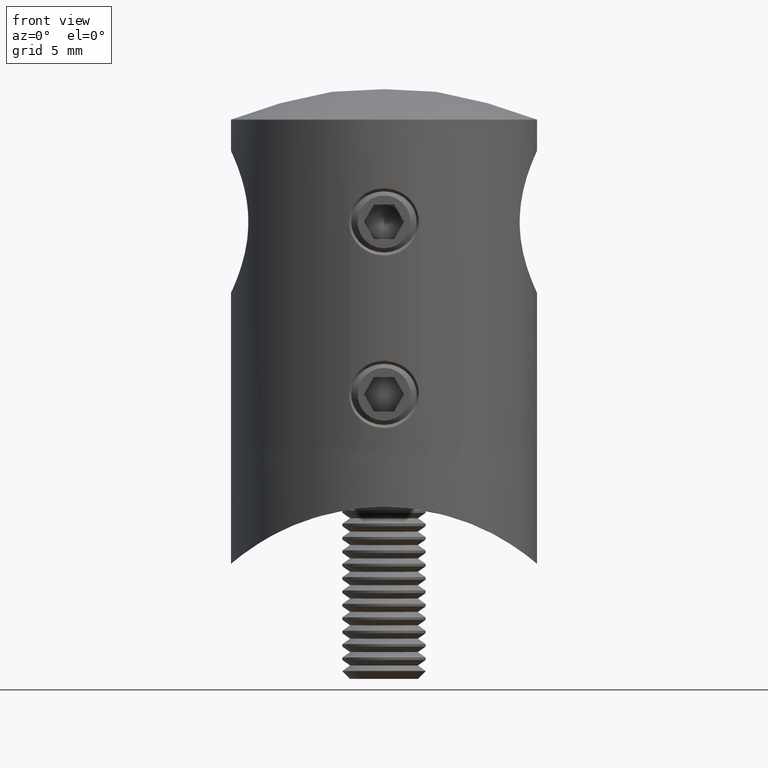
[diagram: clean part render]
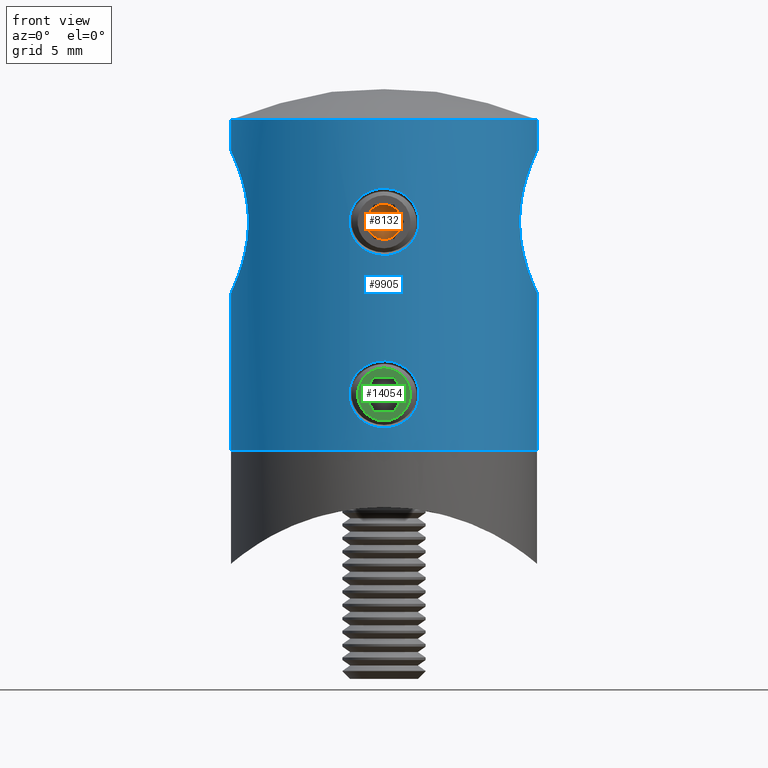
[diagram: same view with three faces highlighted in distinct colors, each labeled with its STEP entity id]
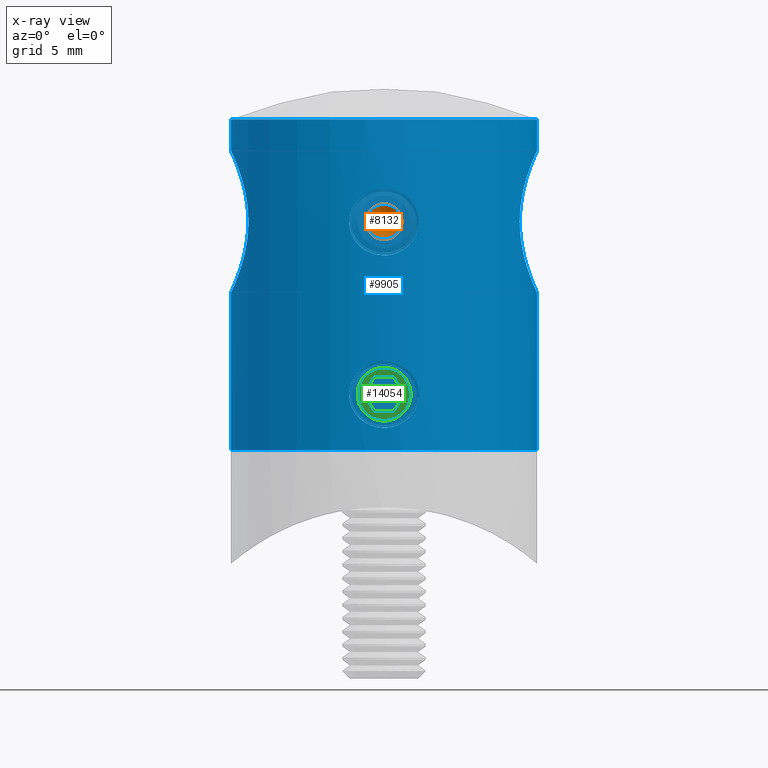
[diagram: x-ray of the same camera — body ghosted, the three highlighted faces saturated]
A machine part, front view with three faces highlighted in distinct colors.
The next image is the same camera in x-ray (body ghosted, the three faces saturated) — at least one of them is partly hidden behind the body in this view.
Their STEP definitions:

[orange] entity #8132 — the highlighted conical surface has half-angle 59 deg.
#440 = CARTESIAN_POINT ( 'NONE',  ( 2.000000000000001300, -1.082531754730553300, -0.6249999999999958900 ) ) ;
#710 = AXIS2_PLACEMENT_3D ( 'NONE', #6711, #8491, #16962 ) ;
#740 = DIRECTION ( 'NONE',  ( -1.000000000000000000, -0.0000000000000000000, 0.0000000000000000000 ) ) ;
#923 = ORIENTED_EDGE ( 'NONE', *, *, #20589, .F. ) ;
#951 = CIRCLE ( 'NONE', #14098, 1.250000000000002900 ) ;
#1242 = DIRECTION ( 'NONE',  ( -1.000000000000000000, -0.0000000000000000000, 0.0000000000000000000 ) ) ;
#1431 = ORIENTED_EDGE ( 'NONE', *, *, #21090, .F. ) ;
#1439 = VERTEX_POINT ( 'NONE', #8262 ) ;
#2050 = EDGE_CURVE ( 'NONE', #1439, #4864, #11025, .T. ) ;
#2206 = ORIENTED_EDGE ( 'NONE', *, *, #15689, .F. ) ;
#2312 = DIRECTION ( 'NONE',  ( 0.0000000000000000000, 0.0000000000000000000, 1.000000000000000000 ) ) ;
#2940 = CARTESIAN_POINT ( 'NONE',  ( 2.000000000000000000, 0.0000000000000000000, 6.209410300080172700E-015 ) ) ;
#3096 = DIRECTION ( 'NONE',  ( 0.0000000000000000000, 0.0000000000000000000, 1.000000000000000000 ) ) ;
#3623 = CARTESIAN_POINT ( 'NONE',  ( 2.000000000000001800, 3.755786496842908900E-016, -1.249999999999999300 ) ) ;
#4219 = AXIS2_PLACEMENT_3D ( 'NONE', #13508, #5066, #7007 ) ;
#4399 = CARTESIAN_POINT ( 'NONE',  ( 2.000000000000000000, 0.0000000000000000000, 6.209410300080172700E-015 ) ) ;
#4848 = DIRECTION ( 'NONE',  ( -1.000000000000000000, -0.0000000000000000000, 0.0000000000000000000 ) ) ;
#4864 = VERTEX_POINT ( 'NONE', #13747 ) ;
#5066 = DIRECTION ( 'NONE',  ( 1.000000000000000000, -0.0000000000000000000, 2.180260461768213300E-016 ) ) ;
#5074 = CIRCLE ( 'NONE', #710, 1.250000000000005300 ) ;
#5744 = VERTEX_POINT ( 'NONE', #440 ) ;
#6711 = CARTESIAN_POINT ( 'NONE',  ( 2.000000000000001300, 0.0000000000000000000, 5.755839955992561400E-015 ) ) ;
#6733 = CARTESIAN_POINT ( 'NONE',  ( 2.000000000000001300, 1.082531754730553100, -0.6249999999999965600 ) ) ;
#7007 = DIRECTION ( 'NONE',  ( 3.469446951953599400E-016, 0.0000000000000000000, -1.000000000000000000 ) ) ;
#7307 = AXIS2_PLACEMENT_3D ( 'NONE', #7769, #14561, #16221 ) ;
#7769 = CARTESIAN_POINT ( 'NONE',  ( 2.000000000000000000, 0.0000000000000000000, 6.209410300080172700E-015 ) ) ;
#7937 = AXIS2_PLACEMENT_3D ( 'NONE', #2940, #1242, #3096 ) ;
#8132 = ADVANCED_FACE ( 'NONE', ( #9235 ), #15663, .F. ) ;
#8262 = CARTESIAN_POINT ( 'NONE',  ( 2.000000000000001300, -1.082531754730552600, 0.6250000000000086600 ) ) ;
#8453 = VERTEX_POINT ( 'NONE', #3623 ) ;
#8491 = DIRECTION ( 'NONE',  ( 1.000000000000000000, -0.0000000000000000000, 2.180260461768213300E-016 ) ) ;
#8494 = CARTESIAN_POINT ( 'NONE',  ( 2.000000000000000000, 0.0000000000000000000, 6.209410300080172700E-015 ) ) ;
#8692 = ORIENTED_EDGE ( 'NONE', *, *, #2050, .F. ) ;
#9043 = CIRCLE ( 'NONE', #13568, 1.250000000000002900 ) ;
#9235 = FACE_OUTER_BOUND ( 'NONE', #12399, .T. ) ;
#10495 = VERTEX_POINT ( 'NONE', #10894 ) ;
#10894 = CARTESIAN_POINT ( 'NONE',  ( 2.000000000000001300, 1.082531754730552600, 0.6250000000000085500 ) ) ;
#11025 = CIRCLE ( 'NONE', #7937, 1.250000000000002900 ) ;
#11254 = EDGE_CURVE ( 'NONE', #8453, #5744, #951, .T. ) ;
#12399 = EDGE_LOOP ( 'NONE', ( #17215, #1431, #2206, #8692, #923, #15682 ) ) ;
#12819 = DIRECTION ( 'NONE',  ( 0.0000000000000000000, 0.0000000000000000000, 1.000000000000000000 ) ) ;
#13508 = CARTESIAN_POINT ( 'NONE',  ( 2.000000000000001300, 0.0000000000000000000, 5.755839955992561400E-015 ) ) ;
#13568 = AXIS2_PLACEMENT_3D ( 'NONE', #16116, #740, #2312 ) ;
#13694 = CIRCLE ( 'NONE', #18844, 1.250000000000002900 ) ;
#13747 = CARTESIAN_POINT ( 'NONE',  ( 2.000000000000000000, 0.0000000000000000000, 1.250000000000000200 ) ) ;
#14098 = AXIS2_PLACEMENT_3D ( 'NONE', #4399, #16347, #12819 ) ;
#14561 = DIRECTION ( 'NONE',  ( -1.000000000000000000, -0.0000000000000000000, 0.0000000000000000000 ) ) ;
#15663 = CONICAL_SURFACE ( 'NONE', #4219, 1.250000000000005300, 1.029744258676652800 ) ;
#15682 = ORIENTED_EDGE ( 'NONE', *, *, #11254, .F. ) ;
#15689 = EDGE_CURVE ( 'NONE', #4864, #10495, #13694, .T. ) ;
#16116 = CARTESIAN_POINT ( 'NONE',  ( 2.000000000000000000, 0.0000000000000000000, 6.209410300080172700E-015 ) ) ;
#16221 = DIRECTION ( 'NONE',  ( 0.0000000000000000000, 0.0000000000000000000, 1.000000000000000000 ) ) ;
#16347 = DIRECTION ( 'NONE',  ( -1.000000000000000000, -0.0000000000000000000, 0.0000000000000000000 ) ) ;
#16962 = DIRECTION ( 'NONE',  ( 3.469446951953599400E-016, 0.0000000000000000000, -1.000000000000000000 ) ) ;
#17215 = ORIENTED_EDGE ( 'NONE', *, *, #18879, .T. ) ;
#18844 = AXIS2_PLACEMENT_3D ( 'NONE', #8494, #4848, #20524 ) ;
#18879 = EDGE_CURVE ( 'NONE', #8453, #20414, #5074, .T. ) ;
#20414 = VERTEX_POINT ( 'NONE', #6733 ) ;
#20524 = DIRECTION ( 'NONE',  ( 0.0000000000000000000, 0.0000000000000000000, 1.000000000000000000 ) ) ;
#20530 = CIRCLE ( 'NONE', #7307, 1.250000000000002900 ) ;
#20589 = EDGE_CURVE ( 'NONE', #5744, #1439, #20530, .T. ) ;
#21090 = EDGE_CURVE ( 'NONE', #10495, #20414, #9043, .T. ) ;

[blue] entity #9905 — the highlighted cylindrical surface (bore or boss wall) has radius 11 mm, axis along (0, 0, 1).
#5 = CARTESIAN_POINT ( 'NONE',  ( 2.381829622713069700, -10.73922843645709300, 15.61740488451371400 ) ) ;
#35 = CARTESIAN_POINT ( 'NONE',  ( -10.99999999999999600, 1.897353801849632800E-016, 11.29999999999999900 ) ) ;
#37 = CARTESIAN_POINT ( 'NONE',  ( 10.00436061697043800, -4.575241178648823000, 14.12254123351116800 ) ) ;
#113 = CARTESIAN_POINT ( 'NONE',  ( -9.746609327651651000, 5.099373206684540500, 16.05260251348449400 ) ) ;
#191 = CARTESIAN_POINT ( 'NONE',  ( 10.92358240342935700, -1.335907363905573600, 11.46663083745702500 ) ) ;
#231 = CARTESIAN_POINT ( 'NONE',  ( 1.535022905045015500, -10.89323192800198800, 18.31811697579191600 ) ) ;
#317 = EDGE_CURVE ( 'NONE', #9400, #9400, #20942, .T. ) ;
#324 = CARTESIAN_POINT ( 'NONE',  ( -2.257482614945340400, -10.76605286276967800, 2.929546619533276000 ) ) ;
#342 = CARTESIAN_POINT ( 'NONE',  ( -10.69790093024884900, 2.576078500588504300, 20.81407917215977200 ) ) ;
#344 = CARTESIAN_POINT ( 'NONE',  ( 10.55128804721513100, 3.122534710036636100, 12.35424311392541900 ) ) ;
#403 = CARTESIAN_POINT ( 'NONE',  ( -2.430626934630721900, -10.72814813956303400, 3.370817171176732100 ) ) ;
#419 = CARTESIAN_POINT ( 'NONE',  ( -10.47336877759368400, -3.371864480480711200, 20.24047110347593300 ) ) ;
#421 = CARTESIAN_POINT ( 'NONE',  ( 10.31158215273080500, 3.838254438372356200, 19.77438753519447800 ) ) ;
#473 = CARTESIAN_POINT ( 'NONE',  ( 2.495530447802617200, -10.71323517469580200, 4.316057407643017800 ) ) ;
#491 = CARTESIAN_POINT ( 'NONE',  ( -9.763479344190180600, -5.067548827356644900, 15.73283853468677900 ) ) ;
#548 = CARTESIAN_POINT ( 'NONE',  ( 1.535022905085276800, -10.89323192799682400, 5.918116975765959100 ) ) ;
#564 = CARTESIAN_POINT ( 'NONE',  ( -10.07469812271536100, -4.420400662356025900, 13.83512119538369900 ) ) ;
#567 = CARTESIAN_POINT ( 'NONE',  ( 10.07469812271536800, 4.420400662356026800, 13.83512119538370500 ) ) ;
#629 = CARTESIAN_POINT ( 'NONE',  ( 0.9623838866416614100, -10.95781991341035100, 1.769162574123964900 ) ) ;
#647 = CARTESIAN_POINT ( 'NONE',  ( 10.70022606909253500, 2.566238421094041200, 20.81964023380006900 ) ) ;
#1133 = VERTEX_POINT ( 'NONE', #4183 ) ;
#1176 = EDGE_LOOP ( 'NONE', ( #16867 ) ) ;
#1293 = CARTESIAN_POINT ( 'NONE',  ( 0.002621827913309108200, -10.99999968754628400, 18.81515378352823500 ) ) ;
#1364 = CARTESIAN_POINT ( 'NONE',  ( -2.020667218593132300E-015, -10.99999999999999800, 13.98484490069484600 ) ) ;
#1445 = CARTESIAN_POINT ( 'NONE',  ( -1.543197030239320100, -10.89377639715052800, 18.33176205964109700 ) ) ;
#1514 = EDGE_LOOP ( 'NONE', ( #2005 ) ) ;
#1586 = CARTESIAN_POINT ( 'NONE',  ( -2.511729057886776100, -10.70939854239878000, 16.55793633575457200 ) ) ;
#1664 = CARTESIAN_POINT ( 'NONE',  ( 0.1643935056931485900, -11.00000000000000000, 13.98484488613688500 ) ) ;
#1746 = CARTESIAN_POINT ( 'NONE',  ( 1.995493121756457100, -10.81788920119303300, 14.92473889477621200 ) ) ;
#1775 = CARTESIAN_POINT ( 'NONE',  ( 10.98409477427311900, -0.6774680798639226600, 11.33405321981837200 ) ) ;
#1836 = CARTESIAN_POINT ( 'NONE',  ( -9.885833756099657400, 4.824245512483266800, 14.73718638957849000 ) ) ;
#1908 = CARTESIAN_POINT ( 'NONE',  ( 10.76607921010692700, -2.278039284623406800, 11.82485560310605500 ) ) ;
#1955 = CARTESIAN_POINT ( 'NONE',  ( 2.511715917072544300, -10.70940162436372500, 16.39829770860849600 ) ) ;
#1973 = CARTESIAN_POINT ( 'NONE',  ( 1.890372269886328600, -10.83698242449021300, 2.402011649646420100 ) ) ;
#1990 = CARTESIAN_POINT ( 'NONE',  ( -10.98461965845903200, -0.6696594642287685400, 21.46708344749502100 ) ) ;
#2005 = ORIENTED_EDGE ( 'NONE', *, *, #14855, .T. ) ;
#2046 = CARTESIAN_POINT ( 'NONE',  ( -2.495363705507605000, -10.71327480271960800, 4.317531738034352500 ) ) ;
#2063 = CARTESIAN_POINT ( 'NONE',  ( -10.07530021768211400, 4.419092927928359100, 13.83261717824195000 ) ) ;
#2065 = CARTESIAN_POINT ( 'NONE',  ( 11.00031598307091900, 0.3266202780843043800, 21.50068153325095100 ) ) ;
#2117 = CARTESIAN_POINT ( 'NONE',  ( -1.996185883738268000, -10.81775451556606900, 5.474240922415229500 ) ) ;
#2133 = CARTESIAN_POINT ( 'NONE',  ( -9.745983956010393400, -5.100568316517894600, 16.07184845647866600 ) ) ;
#2135 = CARTESIAN_POINT ( 'NONE',  ( 10.47336877759368300, 3.371864480480710300, 20.24047110347592900 ) ) ;
#2193 = CARTESIAN_POINT ( 'NONE',  ( 2.495297978060744700, -10.71329013739285200, 3.682043413930197400 ) ) ;
#2211 = CARTESIAN_POINT ( 'NONE',  ( -9.782123209470828600, -5.031053208532882500, 17.25264343705779500 ) ) ;
#2271 = CARTESIAN_POINT ( 'NONE',  ( 0.9648935137385287200, -10.95759921274479100, 6.229834885426770400 ) ) ;
#2287 = CARTESIAN_POINT ( 'NONE',  ( -10.55128804721514000, -3.122534710036641400, 12.35424311392542600 ) ) ;
#2427 = CARTESIAN_POINT ( 'NONE',  ( -10.76247523156004800, -2.278529707840948800, 11.83425253284901800 ) ) ;
#2454 = VERTEX_POINT ( 'NONE', #7757 ) ;
#2744 = B_SPLINE_CURVE_WITH_KNOTS ( 'NONE', 3,
 ( #5255, #13844, #1775, #191, #3627, #1908, #15564, #15348, #5109, #13775, #17007, #22161, #37, #15416, #5323, #5190, #18853, #13918, #20565, #3553, #17301, #8760, #20725, #18700, #8465, #19144, #10615, #17668, #12262, #7427, #3919, #5627, #8838, #3694, #9055, #21033, #15875, #2065, #10769, #15795, #3850, #19365, #647, #10840, #2135, #421, #7355, #8916, #5483, #20877, #3989, #19215, #17373, #15641, #12343, #14063, #5404, #5554, #19290, #12559, #567, #17530, #5709, #13996, #344, #21099, #15950, #7273, #3768, #15715, #8990, #20955, #9139, #12489 ),
 .UNSPECIFIED., .T., .F.,
 ( 4, 2, 2, 2, 2, 2, 2, 2, 2, 2, 2, 2, 2, 2, 2, 2, 2, 2, 2, 2, 2, 2, 2, 2, 2, 2, 2, 2, 2, 2, 2, 2, 2, 2, 2, 2, 4 ),
 ( 0.0000000000000000000, 0.001010597652588617900, 0.002021195305177235400, 0.003031792957765852900, 0.004042390610354470000, 0.005052988262943087000, 0.006063585915531705800, 0.006568884741826014300, 0.007074183568120321100, 0.008084781220708941700, 0.008590080047003246700, 0.009095378873297553500, 0.01010597652588616200, 0.01111657417847477400, 0.01212717183106338400, 0.01313776948365199600, 0.01414836713624060600, 0.01515896478882921400, 0.01616956244141782400, 0.01718016009400643800, 0.01819075774659504800, 0.01920135539918365800, 0.02021195305177226800, 0.02122255070436087800, 0.02223314835694948900, 0.02324374600953810200, 0.02374904483583240700, 0.02425434366212671200, 0.02526494131471532200, 0.02627553896730392600, 0.02728613661989253200, 0.02829673427248113200, 0.02930733192506973500, 0.02981263075136404000, 0.03031792957765834200, 0.03132852723024694800, 0.03233912488283555800 ),
 .UNSPECIFIED. ) ;
#2802 = EDGE_LOOP ( 'NONE', ( #12083 ) ) ;
#3001 = CARTESIAN_POINT ( 'NONE',  ( -0.3315329493984952600, -10.99999999999999600, 13.98484493005393500 ) ) ;
#3071 = FACE_OUTER_BOUND ( 'NONE', #16837, .T. ) ;
#3078 = CARTESIAN_POINT ( 'NONE',  ( -2.495363705507605000, -10.71327480271960800, 16.71753173803435300 ) ) ;
#3144 = CARTESIAN_POINT ( 'NONE',  ( -1.115993498471008700, -10.94431255610991500, 14.23051304831070000 ) ) ;
#3298 = CARTESIAN_POINT ( 'NONE',  ( -0.1616220108473223100, -11.00003883473658200, 18.81531529133300400 ) ) ;
#3380 = CARTESIAN_POINT ( 'NONE',  ( 2.179889364258655400, -10.78223673683874400, 17.61001349837584600 ) ) ;
#3448 = CARTESIAN_POINT ( 'NONE',  ( 0.9623838866416711800, -10.95781991341035100, 14.16916257412396400 ) ) ;
#3460 = CARTESIAN_POINT ( 'NONE',  ( -1.892899697423030100, -10.83654340792634900, 2.404725380980155000 ) ) ;
#3473 = CARTESIAN_POINT ( 'NONE',  ( -10.98409477427311600, 0.6774680798639229900, 11.33405321981837200 ) ) ;
#3475 = EDGE_CURVE ( 'NONE', #20358, #20358, #12905, .T. ) ;
#3551 = CARTESIAN_POINT ( 'NONE',  ( -9.913515838807221300, 4.767307365066429300, 14.58060640433452400 ) ) ;
#3553 = CARTESIAN_POINT ( 'NONE',  ( 9.746124043521531300, -5.100300603888076300, 16.55970841759690500 ) ) ;
#3624 = CARTESIAN_POINT ( 'NONE',  ( -10.47088620841679000, 3.379449766977663300, 20.23365674153711100 ) ) ;
#3627 = CARTESIAN_POINT ( 'NONE',  ( 10.87817437663434800, -1.662301648955468900, 11.56697170889746400 ) ) ;
#3665 = CARTESIAN_POINT ( 'NONE',  ( 1.774878405260975000, -10.85586508052390200, 14.69109991372153200 ) ) ;
#3677 = CARTESIAN_POINT ( 'NONE',  ( 1.543890676010267700, -10.89363039259128000, 2.069276441871760900 ) ) ;
#3692 = CARTESIAN_POINT ( 'NONE',  ( -9.831210612696358100, 4.934853384125918100, 17.73043615380184000 ) ) ;
#3694 = CARTESIAN_POINT ( 'NONE',  ( 10.87691252494812000, -1.670145597579503900, 21.23017820595980300 ) ) ;
#3751 = CARTESIAN_POINT ( 'NONE',  ( 2.383584876163826700, -10.73884196754026400, 4.778017131766939800 ) ) ;
#3768 = CARTESIAN_POINT ( 'NONE',  ( 10.79372047998855600, 2.126081526392296100, 11.76127184379781300 ) ) ;
#3831 = CARTESIAN_POINT ( 'NONE',  ( -2.177980241879993600, -10.78262365602483500, 5.213167996627087900 ) ) ;
#3848 = CARTESIAN_POINT ( 'NONE',  ( -9.750955816283152400, -5.091093399825953500, 16.74569809806016000 ) ) ;
#3850 = CARTESIAN_POINT ( 'NONE',  ( 10.87989800168600500, 1.651396176960097800, 21.23691135796434500 ) ) ;
#3901 = CARTESIAN_POINT ( 'NONE',  ( 1.777126563584013900, -10.85549727912102600, 5.706738476233899100 ) ) ;
#3919 = CARTESIAN_POINT ( 'NONE',  ( 10.55011019610968500, -3.126729857943598500, 20.44275101567398400 ) ) ;
#3972 = CARTESIAN_POINT ( 'NONE',  ( -0.4903270790838651400, -10.98906635504204500, 6.368688208749404100 ) ) ;
#3987 = CARTESIAN_POINT ( 'NONE',  ( -10.98362801482573100, -0.6851161954445393900, 11.33505918355280800 ) ) ;
#3989 = CARTESIAN_POINT ( 'NONE',  ( 9.833678025644266200, 4.929959429588495600, 17.74888431453495100 ) ) ;
#4057 = VERTEX_POINT ( 'NONE', #16353 ) ;
#4130 = CARTESIAN_POINT ( 'NONE',  ( 0.4897246382423631200, -10.98909321912860500, 1.631196561732932500 ) ) ;
#4183 = CARTESIAN_POINT ( 'NONE',  ( 11.00000000000000000, 0.0000000000000000000, 0.0000000000000000000 ) ) ;
#4271 = CARTESIAN_POINT ( 'NONE',  ( -2.020667218593132300E-015, -10.99999999999999800, 1.584844900694847100 ) ) ;
#4458 = CIRCLE ( 'NONE', #13061, 11.00000000000000000 ) ;
#4713 = CARTESIAN_POINT ( 'NONE',  ( -1.996072047024378000, -10.81778173646242000, 14.92547899507782500 ) ) ;
#4782 = CARTESIAN_POINT ( 'NONE',  ( -2.463083399544349300, -10.72069121684273800, 16.87296431255212400 ) ) ;
#4857 = CARTESIAN_POINT ( 'NONE',  ( 0.3311095054345719000, -10.99992139316568700, 18.81483076791868600 ) ) ;
#5005 = CARTESIAN_POINT ( 'NONE',  ( -1.892943344172693700, -10.83654561251257900, 17.99533139784182700 ) ) ;
#5077 = CARTESIAN_POINT ( 'NONE',  ( 2.320207892953276600, -10.75251762767572900, 17.32497216206398200 ) ) ;
#5091 = CARTESIAN_POINT ( 'NONE',  ( -1.261211241404091900, -10.92831925419361200, 1.905472548706967000 ) ) ;
#5107 = CARTESIAN_POINT ( 'NONE',  ( -10.47192994644006200, 3.376204713791207900, 12.56352283884599100 ) ) ;
#5109 = CARTESIAN_POINT ( 'NONE',  ( 10.47192994644006200, -3.376204713791206100, 12.56352283884598900 ) ) ;
#5156 = CARTESIAN_POINT ( 'NONE',  ( 2.511631889561162000, -10.70942133164945500, 16.23990702731718000 ) ) ;
#5186 = CARTESIAN_POINT ( 'NONE',  ( -10.30987621817060400, 3.842732241926132300, 19.76912654204614500 ) ) ;
#5190 = CARTESIAN_POINT ( 'NONE',  ( 9.836864287762125500, -4.923327614744372300, 15.05868010317692600 ) ) ;
#5255 = CARTESIAN_POINT ( 'NONE',  ( 11.00000000000000000, -1.084202172485504400E-016, 11.29999999999999900 ) ) ;
#5293 = CARTESIAN_POINT ( 'NONE',  ( 2.430721202022829700, -10.72812621128730400, 15.77131744761732800 ) ) ;
#5321 = CARTESIAN_POINT ( 'NONE',  ( -10.87691252494811600, 1.670145597579503200, 21.23017820595980600 ) ) ;
#5323 = CARTESIAN_POINT ( 'NONE',  ( 9.885833756099659200, -4.824245512483267700, 14.73718638957849000 ) ) ;
#5369 = CARTESIAN_POINT ( 'NONE',  ( 2.463009590041774600, -10.72070817434008000, 15.92668043077660700 ) ) ;
#5385 = CARTESIAN_POINT ( 'NONE',  ( -2.511729057886776100, -10.70939854239878000, 4.157936335757463000 ) ) ;
#5404 = CARTESIAN_POINT ( 'NONE',  ( 9.763479344190173500, 5.067548827356644900, 15.73283853468677900 ) ) ;
#5460 = FACE_BOUND ( 'NONE', #15065, .T. ) ;
#5463 = CARTESIAN_POINT ( 'NONE',  ( 1.893470199382560000, -10.83645095076173300, 5.594738271604635200 ) ) ;
#5483 = CARTESIAN_POINT ( 'NONE',  ( 10.00459041982638700, 4.574747880705968100, 18.67853826946136000 ) ) ;
#5536 = CARTESIAN_POINT ( 'NONE',  ( -2.319860156032100400, -10.75259265742242600, 4.925778238272567200 ) ) ;
#5552 = CARTESIAN_POINT ( 'NONE',  ( -10.79372047998855100, -2.126081526392301400, 11.76127184379781600 ) ) ;
#5554 = CARTESIAN_POINT ( 'NONE',  ( 9.831401816782660700, 4.934482580680001900, 15.06731954339826500 ) ) ;
#5607 = CARTESIAN_POINT ( 'NONE',  ( 1.399033590713174800, -10.91066932007638700, 6.005811658922017800 ) ) ;
#5627 = CARTESIAN_POINT ( 'NONE',  ( 10.69790093024885600, -2.576078500588502500, 20.81407917215978300 ) ) ;
#5690 = CARTESIAN_POINT ( 'NONE',  ( 2.320207892953276600, -10.75251762767572900, 4.924972162063986600 ) ) ;
#5709 = CARTESIAN_POINT ( 'NONE',  ( 10.30907895527403500, 3.845060912577607400, 13.03314621997213000 ) ) ;
#5780 = CARTESIAN_POINT ( 'NONE',  ( -10.76752374769291600, -2.271502190894517900, 20.97854765344256100 ) ) ;
#5973 = CARTESIAN_POINT ( 'NONE',  ( 11.00000000000000000, 0.0000000000000000000, 11.29999999999999700 ) ) ;
#6423 = CARTESIAN_POINT ( 'NONE',  ( -1.268443744548116500, -10.93091935411460000, 18.50864464349973900 ) ) ;
#6516 = CARTESIAN_POINT ( 'NONE',  ( 0.0000000000000000000, 0.0000000000000000000, 23.74878637916747000 ) ) ;
#6572 = EDGE_CURVE ( 'NONE', #2454, #2454, #15651, .T. ) ;
#6648 = CARTESIAN_POINT ( 'NONE',  ( -2.382999229834640100, -10.73896813810979400, 15.62066227062434400 ) ) ;
#6721 = CARTESIAN_POINT ( 'NONE',  ( -0.3276201266745030200, -10.99632626431403900, 18.79983241680432100 ) ) ;
#6736 = DIRECTION ( 'NONE',  ( 1.000000000000000000, 0.0000000000000000000, 0.0000000000000000000 ) ) ;
#6895 = CARTESIAN_POINT ( 'NONE',  ( -9.764554807653102100, 5.065479761543580900, 15.71864772819509100 ) ) ;
#7031 = CARTESIAN_POINT ( 'NONE',  ( -0.6586619930405998000, -10.98452728326412000, 1.647857589364626800 ) ) ;
#7048 = CARTESIAN_POINT ( 'NONE',  ( -10.99967404411871300, 0.3475679165322346200, 21.49929695674811800 ) ) ;
#7092 = CARTESIAN_POINT ( 'NONE',  ( 0.6509923734586801100, -10.98190638562795800, 14.06202588692813500 ) ) ;
#7105 = CARTESIAN_POINT ( 'NONE',  ( 0.3311095053121640400, -10.99992139316571600, 6.414830767918807900 ) ) ;
#7120 = CARTESIAN_POINT ( 'NONE',  ( -10.92358240342935500, 1.335907363905573600, 11.46663083745702000 ) ) ;
#7175 = CARTESIAN_POINT ( 'NONE',  ( 0.002621827913299337800, -10.99999968754628400, 6.415153783528235300 ) ) ;
#7188 = EDGE_LOOP ( 'NONE', ( #10694 ) ) ;
#7254 = CARTESIAN_POINT ( 'NONE',  ( -0.1616220107861330000, -11.00003883473656800, 6.415315291332948500 ) ) ;
#7273 = CARTESIAN_POINT ( 'NONE',  ( 10.76247523156004400, 2.278529707840944300, 11.83425253284901400 ) ) ;
#7280 = EDGE_CURVE ( 'NONE', #1133, #1133, #4458, .T. ) ;
#7333 = CARTESIAN_POINT ( 'NONE',  ( 2.511631889561162000, -10.70942133164945500, 3.839907027314249300 ) ) ;
#7351 = CARTESIAN_POINT ( 'NONE',  ( -9.768733347336896200, -5.056898271221757400, 17.08302200203814900 ) ) ;
#7355 = CARTESIAN_POINT ( 'NONE',  ( 10.23062083369497800, 4.046496105150160000, 19.52160426523856900 ) ) ;
#7410 = CARTESIAN_POINT ( 'NONE',  ( 2.318934602487287200, -10.75279230290379400, 3.072080269349922100 ) ) ;
#7426 = CARTESIAN_POINT ( 'NONE',  ( -10.00222700330179200, -4.579911297734634300, 14.13158646250897700 ) ) ;
#7427 = CARTESIAN_POINT ( 'NONE',  ( 10.47088620841679000, -3.379449766977662900, 20.23365674153711100 ) ) ;
#7488 = CARTESIAN_POINT ( 'NONE',  ( -10.99999999999999800, -0.3420402686100491000, 11.29999999999999900 ) ) ;
#7558 = CARTESIAN_POINT ( 'NONE',  ( 0.8106894968027548200, -10.97114265804646700, 1.708653337313666300 ) ) ;
#7757 = CARTESIAN_POINT ( 'NONE',  ( -2.020667218593132300E-015, -10.99999999999999800, 13.98484490069484600 ) ) ;
#8147 = FACE_BOUND ( 'NONE', #1514, .T. ) ;
#8214 = AXIS2_PLACEMENT_3D ( 'NONE', #6516, #20180, #6736 ) ;
#8218 = CARTESIAN_POINT ( 'NONE',  ( -0.9635496633443911800, -10.95771746515983500, 14.16962789533540800 ) ) ;
#8289 = CARTESIAN_POINT ( 'NONE',  ( -2.319860156032100400, -10.75259265742242600, 17.32577823827256900 ) ) ;
#8366 = CARTESIAN_POINT ( 'NONE',  ( -2.087083062809130600, -10.80018908579545200, 17.74370445952115500 ) ) ;
#8440 = CARTESIAN_POINT ( 'NONE',  ( -1.533328306870229700, -10.89347143110832900, 14.48063127000943600 ) ) ;
#8465 = CARTESIAN_POINT ( 'NONE',  ( 9.880785821988753900, -4.836366772746158600, 18.05286453897976900 ) ) ;
#8505 = CARTESIAN_POINT ( 'NONE',  ( 1.893470199320557800, -10.83645095077188500, 17.99473827165266100 ) ) ;
#8534 = CARTESIAN_POINT ( 'NONE',  ( -10.92203846952601900, 1.349500825788746900, 21.32996568247475400 ) ) ;
#8598 = CARTESIAN_POINT ( 'NONE',  ( -2.087678545343330000, -10.80007399471471700, 2.657151107508259000 ) ) ;
#8660 = CARTESIAN_POINT ( 'NONE',  ( 0.8106894969185034500, -10.97114265803630100, 14.10865333735333300 ) ) ;
#8758 = CARTESIAN_POINT ( 'NONE',  ( -9.836864287762120200, 4.923327614744370500, 15.05868010317692900 ) ) ;
#8760 = CARTESIAN_POINT ( 'NONE',  ( 9.767782344364496400, -5.058733202320076400, 17.06944071582966400 ) ) ;
#8819 = CARTESIAN_POINT ( 'NONE',  ( -2.320240922396904300, -10.75251050043824500, 3.075104445097748900 ) ) ;
#8836 = CARTESIAN_POINT ( 'NONE',  ( -10.31115410062419500, 3.839293709232861000, 13.02699850404312800 ) ) ;
#8838 = CARTESIAN_POINT ( 'NONE',  ( 10.76524624909549400, -2.281684813646024600, 20.97317419629084500 ) ) ;
#8896 = CARTESIAN_POINT ( 'NONE',  ( 2.511799944583926100, -10.70938191707799400, 4.156688389902742000 ) ) ;
#8916 = CARTESIAN_POINT ( 'NONE',  ( 10.07729814196231300, 4.414498332747689000, 18.97502395870773400 ) ) ;
#8972 = CARTESIAN_POINT ( 'NONE',  ( 2.089123661313935900, -10.79979455025595500, 5.340769317046009800 ) ) ;
#8990 = CARTESIAN_POINT ( 'NONE',  ( 10.92259533598678600, 1.344016255707064300, 11.46881049038183600 ) ) ;
#9040 = CARTESIAN_POINT ( 'NONE',  ( 2.430721202022804000, -10.72812621128730700, 3.371317447623022100 ) ) ;
#9053 = CARTESIAN_POINT ( 'NONE',  ( -9.833678025644271500, -4.929959429588498300, 17.74888431453494800 ) ) ;
#9055 = CARTESIAN_POINT ( 'NONE',  ( 10.92203846952602400, -1.349500825788743100, 21.32996568247476800 ) ) ;
#9117 = CARTESIAN_POINT ( 'NONE',  ( 2.178857699620390800, -10.78245327803794100, 2.788117446777010700 ) ) ;
#9139 = CARTESIAN_POINT ( 'NONE',  ( 11.00000000000000200, 0.3420402686100437200, 11.29999999999999700 ) ) ;
#9400 = VERTEX_POINT ( 'NONE', #14035 ) ;
#9640 = VERTEX_POINT ( 'NONE', #5973 ) ;
#9850 = CARTESIAN_POINT ( 'NONE',  ( -2.320240922396904300, -10.75251050043824500, 15.47510444509774700 ) ) ;
#9905 = ADVANCED_FACE ( 'NONE', ( #5460, #13473, #12686, #8147, #19086, #3071 ), #21255, .T. ) ;
#9925 = CARTESIAN_POINT ( 'NONE',  ( -2.179285043662281500, -10.78236625296701400, 15.18882321993868900 ) ) ;
#10067 = CARTESIAN_POINT ( 'NONE',  ( -0.9631123533028067600, -10.95775591053731500, 18.63054673490993100 ) ) ;
#10139 = CARTESIAN_POINT ( 'NONE',  ( 2.318934602487287200, -10.75279230290379400, 15.47208026934992200 ) ) ;
#10152 = CARTESIAN_POINT ( 'NONE',  ( -1.115993498496286900, -10.94431255610769100, 1.830513048320795400 ) ) ;
#10215 = CARTESIAN_POINT ( 'NONE',  ( 1.777126563584013900, -10.85549727912102600, 18.10673847623389300 ) ) ;
#10264 = ORIENTED_EDGE ( 'NONE', *, *, #7280, .T. ) ;
#10318 = CARTESIAN_POINT ( 'NONE',  ( -9.815636342375487500, 4.965348642925768300, 15.22371585600222100 ) ) ;
#10362 = CARTESIAN_POINT ( 'NONE',  ( 2.495530447802617200, -10.71323517469580200, 16.71605740764301700 ) ) ;
#10376 = CARTESIAN_POINT ( 'NONE',  ( -2.179285043678576000, -10.78236625296386300, 2.788823219965029600 ) ) ;
#10530 = CARTESIAN_POINT ( 'NONE',  ( 0.6619940356631945900, -10.98427163761042500, 6.351015105470548100 ) ) ;
#10546 = CARTESIAN_POINT ( 'NONE',  ( -10.22938670084714000, 4.049654862654770100, 13.28228732040598100 ) ) ;
#10598 = CARTESIAN_POINT ( 'NONE',  ( -2.256864148927033100, -10.76618397735132300, 5.071739856433886500 ) ) ;
#10615 = CARTESIAN_POINT ( 'NONE',  ( 10.07413874253476000, -4.421680918401317100, 18.96272170532579100 ) ) ;
#10674 = CARTESIAN_POINT ( 'NONE',  ( 2.463499994663159100, -10.72059549541417000, 4.470953949805736900 ) ) ;
#10694 = ORIENTED_EDGE ( 'NONE', *, *, #6572, .T. ) ;
#10749 = CARTESIAN_POINT ( 'NONE',  ( -2.463083399544349300, -10.72069121684273800, 4.472964312552125700 ) ) ;
#10766 = CARTESIAN_POINT ( 'NONE',  ( -10.31158215273080500, -3.838254438372356200, 19.77438753519448200 ) ) ;
#10769 = CARTESIAN_POINT ( 'NONE',  ( 10.98461965845903200, 0.6696594642287665400, 21.46708344749500700 ) ) ;
#10825 = CARTESIAN_POINT ( 'NONE',  ( -1.543197030239268600, -10.89377639715053700, 5.931762059629532400 ) ) ;
#10840 = CARTESIAN_POINT ( 'NONE',  ( 10.55378527435345500, 3.114166653605242800, 20.45225437055679100 ) ) ;
#11487 = CARTESIAN_POINT ( 'NONE',  ( -2.463094693421274500, -10.72068862206341100, 15.92709007112410400 ) ) ;
#11505 = DIRECTION ( 'NONE',  ( 1.000000000000000000, 0.0000000000000000000, 0.0000000000000000000 ) ) ;
#11567 = CARTESIAN_POINT ( 'NONE',  ( -1.661524859644376400, -10.87442308525667500, 14.58196271358566800 ) ) ;
#11696 = DIRECTION ( 'NONE',  ( 1.000000000000000000, 0.0000000000000000000, 0.0000000000000000000 ) ) ;
#11711 = CARTESIAN_POINT ( 'NONE',  ( -2.511703974928243700, -10.70940442520010400, 16.24273929157860500 ) ) ;
#11771 = DIRECTION ( 'NONE',  ( -0.0000000000000000000, -0.0000000000000000000, 1.000000000000000000 ) ) ;
#11785 = CARTESIAN_POINT ( 'NONE',  ( -2.430626934628957100, -10.72814813956344100, 15.77081717116243500 ) ) ;
#11862 = CARTESIAN_POINT ( 'NONE',  ( 2.087175410688430600, -10.80017123961548500, 15.05642817077661600 ) ) ;
#11930 = CARTESIAN_POINT ( 'NONE',  ( 2.495297978060719400, -10.71329013739285700, 16.08204341393588500 ) ) ;
#12000 = CARTESIAN_POINT ( 'NONE',  ( 0.4897246382423631200, -10.98909321912860500, 14.03119656173292800 ) ) ;
#12014 = CARTESIAN_POINT ( 'NONE',  ( -1.661524859658452900, -10.87442308525437100, 2.181962713599229900 ) ) ;
#12032 = CARTESIAN_POINT ( 'NONE',  ( -10.55213191267872700, 3.119896509840596200, 12.35200189701629700 ) ) ;
#12054 = EDGE_CURVE ( 'NONE', #4057, #4057, #20006, .T. ) ;
#12083 = ORIENTED_EDGE ( 'NONE', *, *, #12054, .T. ) ;
#12111 = CARTESIAN_POINT ( 'NONE',  ( -9.750431221126522300, 5.092096281612858100, 16.73088962366718100 ) ) ;
#12159 = CARTESIAN_POINT ( 'NONE',  ( 2.463499994663159100, -10.72059549541417000, 16.87095394980573500 ) ) ;
#12169 = CARTESIAN_POINT ( 'NONE',  ( 1.995493121756470000, -10.81788920119303100, 2.524738894776223900 ) ) ;
#12183 = CARTESIAN_POINT ( 'NONE',  ( -10.69954747067740900, 2.569226743090020600, 11.98195554385582900 ) ) ;
#12242 = CARTESIAN_POINT ( 'NONE',  ( -2.087083062809130600, -10.80018908579545200, 5.343704459521158700 ) ) ;
#12262 = CARTESIAN_POINT ( 'NONE',  ( 10.30987621817060100, -3.842732241926132300, 19.76912654204613400 ) ) ;
#12321 = CARTESIAN_POINT ( 'NONE',  ( -2.382856163137168100, -10.73900133749352800, 4.779816620111248000 ) ) ;
#12341 = CARTESIAN_POINT ( 'NONE',  ( -10.23062083369498000, -4.046496105150158200, 19.52160426523857600 ) ) ;
#12343 = CARTESIAN_POINT ( 'NONE',  ( 9.746435882187439500, 5.099704667917422700, 16.57715091522957400 ) ) ;
#12402 = CARTESIAN_POINT ( 'NONE',  ( 2.511715917072544300, -10.70940162436372500, 3.998297708608496300 ) ) ;
#12470 = CARTESIAN_POINT ( 'NONE',  ( -2.430803093581094000, -10.72810763096586800, 4.628396887069898800 ) ) ;
#12486 = CARTESIAN_POINT ( 'NONE',  ( -9.883215163198309800, -4.831377203079143500, 18.06668807489311500 ) ) ;
#12489 = CARTESIAN_POINT ( 'NONE',  ( 11.00000000000000000, -1.084202172485504400E-016, 11.29999999999999900 ) ) ;
#12559 = CARTESIAN_POINT ( 'NONE',  ( 10.00222700330179600, 4.579911297734634300, 14.13158646250898800 ) ) ;
#12686 = FACE_BOUND ( 'NONE', #2802, .T. ) ;
#12703 = CARTESIAN_POINT ( 'NONE',  ( 0.1643935056628486900, -11.00000000000000000, 1.584844886136918000 ) ) ;
#12905 = B_SPLINE_CURVE_WITH_KNOTS ( 'NONE', 3,
 ( #17282, #20629, #7031, #17133, #10152, #5091, #22144, #17056, #12014, #13761, #3460, #15467, #8598, #10376, #324, #8819, #17355, #403, #15855, #20857, #17433, #21015, #5385, #2046, #10749, #12470, #12321, #5536, #10598, #3831, #12242, #2117, #19048, #19125, #10825, #20776, #14119, #17513, #15695, #3972, #14193, #7254, #7175, #7105, #10530, #2271, #15775, #13978, #5607, #548, #14047, #3901, #5463, #19195, #8972, #17582, #20936, #5690, #3751, #17649, #10674, #473, #8896, #12402, #7333, #2193, #19268, #9040, #15933, #7410, #19350, #9117, #21082, #12169, #1973, #13897, #3677, #15625, #629, #7558, #17873, #4130, #16151, #12703, #4271 ),
 .UNSPECIFIED., .T., .F.,
 ( 4, 3, 3, 3, 3, 3, 3, 3, 3, 3, 3, 3, 3, 3, 3, 3, 3, 3, 3, 3, 3, 3, 3, 3, 3, 3, 3, 3, 4 ),
 ( 0.0000000000000000000, 0.03571428571428571200, 0.07142857142857142500, 0.1071428571428571400, 0.1428571428571428500, 0.1785714285714285800, 0.2142857142857142700, 0.2500000000000000000, 0.2857142857142857000, 0.3214285714285714500, 0.3571428571428571500, 0.3928571428571428500, 0.4285714285714285500, 0.4642857142857143000, 0.5000000000000000000, 0.5357142857142857000, 0.5714285714285714000, 0.6071428571428571000, 0.6428571428571429000, 0.6785714285714286000, 0.7142857142857143000, 0.7500000000000000000, 0.7857142857142857000, 0.8214285714285714000, 0.8571428571428571000, 0.8928571428571429000, 0.9285714285714286000, 0.9642857142857143000, 1.000000000000000000 ),
 .UNSPECIFIED. ) ;
#13061 = AXIS2_PLACEMENT_3D ( 'NONE', #21478, #18047, #11505 ) ;
#13226 = CARTESIAN_POINT ( 'NONE',  ( 0.6619940356628312200, -10.98427163761045800, 18.75101510548229200 ) ) ;
#13291 = CARTESIAN_POINT ( 'NONE',  ( -1.261211241404091900, -10.92831925419361200, 14.30547254870696400 ) ) ;
#13367 = CARTESIAN_POINT ( 'NONE',  ( -2.495562452213592400, -10.71322910456338400, 16.08336297108577600 ) ) ;
#13448 = CARTESIAN_POINT ( 'NONE',  ( -2.430803093581094000, -10.72810763096586800, 17.02839688706989600 ) ) ;
#13473 = FACE_BOUND ( 'NONE', #7188, .T. ) ;
#13518 = CARTESIAN_POINT ( 'NONE',  ( -0.6530340314932273600, -10.98180644577005100, 18.73754400069448100 ) ) ;
#13595 = CARTESIAN_POINT ( 'NONE',  ( 0.3284569030260461900, -10.99628005262925400, 14.00036723653772300 ) ) ;
#13667 = CARTESIAN_POINT ( 'NONE',  ( -2.020667218593132300E-015, -10.99999999999999800, 13.98484490069484600 ) ) ;
#13744 = CARTESIAN_POINT ( 'NONE',  ( 1.265772666088006400, -10.93117442415845100, 14.29018104766522700 ) ) ;
#13761 = CARTESIAN_POINT ( 'NONE',  ( -1.777212278540741600, -10.85548324659036000, 2.293344047289692400 ) ) ;
#13775 = CARTESIAN_POINT ( 'NONE',  ( 10.31115410062419500, -3.839293709232858300, 13.02699850404312400 ) ) ;
#13842 = CARTESIAN_POINT ( 'NONE',  ( -10.07413874253476000, 4.421680918401315300, 18.96272170532579100 ) ) ;
#13844 = CARTESIAN_POINT ( 'NONE',  ( 11.00000000000000000, -0.3420402686100476000, 11.30000000000000100 ) ) ;
#13886 = CARTESIAN_POINT ( 'NONE',  ( 2.511799944583926100, -10.70938191707799400, 16.55668838989981500 ) ) ;
#13897 = CARTESIAN_POINT ( 'NONE',  ( 1.774878405260975000, -10.85586508052390200, 2.291099913721534000 ) ) ;
#13916 = CARTESIAN_POINT ( 'NONE',  ( -10.92420653231054900, -1.331174097726975900, 21.33474963736254500 ) ) ;
#13918 = CARTESIAN_POINT ( 'NONE',  ( 9.764554807653103900, -5.065479761543580900, 15.71864772819508700 ) ) ;
#13978 = CARTESIAN_POINT ( 'NONE',  ( 1.263044276341072700, -10.92810671215594800, 6.093506342078076600 ) ) ;
#13993 = CARTESIAN_POINT ( 'NONE',  ( -10.00436061697045000, 4.575241178648824700, 14.12254123351117700 ) ) ;
#13996 = CARTESIAN_POINT ( 'NONE',  ( 10.47201491691117100, 3.376167339972384200, 12.56311429802452300 ) ) ;
#14035 = CARTESIAN_POINT ( 'NONE',  ( 10.99999999999999600, 0.0000000000000000000, 23.74878637916747000 ) ) ;
#14047 = CARTESIAN_POINT ( 'NONE',  ( 1.660782927785467800, -10.87454360748031900, 5.818738680863162000 ) ) ;
#14061 = CARTESIAN_POINT ( 'NONE',  ( -9.880766135392452300, -4.836382232452141500, 14.74751872209966700 ) ) ;
#14063 = CARTESIAN_POINT ( 'NONE',  ( 9.745983956010393400, 5.100568316517894600, 16.07184845647866600 ) ) ;
#14119 = CARTESIAN_POINT ( 'NONE',  ( -0.9631123533028165300, -10.95775591053731500, 6.230546734909931500 ) ) ;
#14193 = CARTESIAN_POINT ( 'NONE',  ( -0.3276201266150175500, -10.99632626431669300, 6.399832416815710800 ) ) ;
#14212 = CARTESIAN_POINT ( 'NONE',  ( -10.69623310193279800, -2.571608090004069900, 11.99266754206867500 ) ) ;
#14360 = CARTESIAN_POINT ( 'NONE',  ( -9.831401816782660700, -4.934482580680002800, 15.06731954339825900 ) ) ;
#14855 = EDGE_CURVE ( 'NONE', #9640, #9640, #2744, .T. ) ;
#15065 = EDGE_LOOP ( 'NONE', ( #22053 ) ) ;
#15097 = CARTESIAN_POINT ( 'NONE',  ( -0.4903270790838651400, -10.98906635504204500, 18.76868820874940300 ) ) ;
#15238 = CARTESIAN_POINT ( 'NONE',  ( -2.177980241902248300, -10.78262365602053500, 17.61316799658935400 ) ) ;
#15348 = CARTESIAN_POINT ( 'NONE',  ( 10.55213191267872500, -3.119896509840596200, 12.35200189701630300 ) ) ;
#15390 = CARTESIAN_POINT ( 'NONE',  ( 1.660782927847469700, -10.87454360747016800, 18.21873868081512500 ) ) ;
#15414 = CARTESIAN_POINT ( 'NONE',  ( -9.780729526921806600, 5.033756045906779200, 17.23636692954555400 ) ) ;
#15416 = CARTESIAN_POINT ( 'NONE',  ( 9.913515838807216000, -4.767307365066426600, 14.58060640433451600 ) ) ;
#15456 = CARTESIAN_POINT ( 'NONE',  ( 2.383584876156975800, -10.73884196754174300, 17.17801713178284500 ) ) ;
#15467 = CARTESIAN_POINT ( 'NONE',  ( -1.996072047008083900, -10.81778173646557100, 2.525478995051488900 ) ) ;
#15527 = CARTESIAN_POINT ( 'NONE',  ( 2.089123661313935900, -10.79979455025595500, 17.74076931704600600 ) ) ;
#15562 = CARTESIAN_POINT ( 'NONE',  ( -10.55011019610969000, 3.126729857943599800, 20.44275101567399100 ) ) ;
#15564 = CARTESIAN_POINT ( 'NONE',  ( 10.69954747067740900, -2.569226743090022400, 11.98195554385583300 ) ) ;
#15625 = CARTESIAN_POINT ( 'NONE',  ( 1.265772666319474600, -10.93117442413812100, 1.890181047744562000 ) ) ;
#15641 = CARTESIAN_POINT ( 'NONE',  ( 9.750955816283148900, 5.091093399825955300, 16.74569809806015600 ) ) ;
#15651 = B_SPLINE_CURVE_WITH_KNOTS ( 'NONE', 3,
 ( #1364, #3001, #18378, #8218, #3144, #13291, #18672, #8440, #11567, #21980, #16895, #4713, #18600, #9925, #20088, #9850, #6648, #11785, #11487, #13367, #11711, #18529, #1586, #3078, #4782, #13448, #16752, #8289, #20237, #15238, #8366, #20166, #5005, #21902, #1445, #6423, #10067, #22061, #13518, #15097, #6721, #3298, #1293, #4857, #13226, #16978, #16823, #16676, #18819, #231, #15390, #10215, #8505, #20392, #15527, #3380, #22130, #5077, #15456, #17194, #12159, #10362, #13886, #1955, #5156, #11930, #5369, #5293, #5, #10139, #17270, #18891, #11862, #1746, #20693, #3665, #17044, #13744, #3448, #8660, #7092, #12000, #13595, #1664, #13667 ),
 .UNSPECIFIED., .T., .F.,
 ( 4, 3, 3, 3, 3, 3, 3, 3, 3, 3, 3, 3, 3, 3, 3, 3, 3, 3, 3, 3, 3, 3, 3, 3, 3, 3, 3, 3, 4 ),
 ( 0.0000000000000000000, 0.03571428571428571200, 0.07142857142857142500, 0.1071428571428571400, 0.1428571428571428500, 0.1785714285714285800, 0.2142857142857142700, 0.2500000000000000000, 0.2857142857142857000, 0.3214285714285714500, 0.3571428571428571500, 0.3928571428571428500, 0.4285714285714285500, 0.4642857142857143000, 0.5000000000000000000, 0.5357142857142857000, 0.5714285714285714000, 0.6071428571428571000, 0.6428571428571429000, 0.6785714285714286000, 0.7142857142857143000, 0.7500000000000000000, 0.7857142857142857000, 0.8214285714285714000, 0.8571428571428571000, 0.8928571428571429000, 0.9285714285714286000, 0.9642857142857143000, 1.000000000000000000 ),
 .UNSPECIFIED. ) ;
#15695 = CARTESIAN_POINT ( 'NONE',  ( -0.6530340315527127800, -10.98180644576739700, 6.337544000683097400 ) ) ;
#15713 = CARTESIAN_POINT ( 'NONE',  ( -10.99999999999999600, 1.897353801849632800E-016, 11.29999999999999900 ) ) ;
#15715 = CARTESIAN_POINT ( 'NONE',  ( 10.87810309732537600, 1.662940417430554000, 11.56712141430042700 ) ) ;
#15775 = CARTESIAN_POINT ( 'NONE',  ( 1.116343252776195600, -10.94426300031197400, 6.169244775404881600 ) ) ;
#15793 = CARTESIAN_POINT ( 'NONE',  ( -10.47201491691116500, -3.376167339972387300, 12.56311429802451800 ) ) ;
#15795 = CARTESIAN_POINT ( 'NONE',  ( 10.92420653231055500, 1.331174097726976100, 21.33474963736256000 ) ) ;
#15855 = CARTESIAN_POINT ( 'NONE',  ( -2.463094693421274500, -10.72068862206341100, 3.527090071124106900 ) ) ;
#15872 = CARTESIAN_POINT ( 'NONE',  ( -9.746435882187436000, -5.099704667917423600, 16.57715091522956600 ) ) ;
#15875 = CARTESIAN_POINT ( 'NONE',  ( 10.99967404411871500, -0.3475679165322339000, 21.49929695674811500 ) ) ;
#15933 = CARTESIAN_POINT ( 'NONE',  ( 2.381829622718711000, -10.73922843645587700, 3.217404884529632800 ) ) ;
#15950 = CARTESIAN_POINT ( 'NONE',  ( 10.69623310193278500, 2.571608090004069400, 11.99266754206867200 ) ) ;
#16013 = CARTESIAN_POINT ( 'NONE',  ( -10.00459041982639800, -4.574747880705968900, 18.67853826946137700 ) ) ;
#16137 = CARTESIAN_POINT ( 'NONE',  ( -2.020667218593132300E-015, -10.99999999999999800, 1.584844900694847100 ) ) ;
#16151 = CARTESIAN_POINT ( 'NONE',  ( 0.3284569029660139900, -10.99628005263193000, 1.600367236529137300 ) ) ;
#16353 = CARTESIAN_POINT ( 'NONE',  ( -10.99999999999999800, 0.0000000000000000000, 11.29999999999999700 ) ) ;
#16676 = CARTESIAN_POINT ( 'NONE',  ( 1.263044276381334100, -10.92810671215078600, 18.49350634205210800 ) ) ;
#16752 = CARTESIAN_POINT ( 'NONE',  ( -2.382856163137154800, -10.73900133749353000, 17.17981662011126800 ) ) ;
#16823 = CARTESIAN_POINT ( 'NONE',  ( 1.116343252776377500, -10.94426300031195800, 18.56924477539900700 ) ) ;
#16837 = EDGE_LOOP ( 'NONE', ( #10264 ) ) ;
#16867 = ORIENTED_EDGE ( 'NONE', *, *, #317, .F. ) ;
#16895 = CARTESIAN_POINT ( 'NONE',  ( -1.892899697437106800, -10.83654340792404500, 14.80472538099371200 ) ) ;
#16978 = CARTESIAN_POINT ( 'NONE',  ( 0.9648935137385287200, -10.95759921274479100, 18.62983488542676700 ) ) ;
#17007 = CARTESIAN_POINT ( 'NONE',  ( 10.22938670084714200, -4.049654862654770100, 13.28228732040597700 ) ) ;
#17044 = CARTESIAN_POINT ( 'NONE',  ( 1.543890676010139400, -10.89363039259130200, 14.46927644187164600 ) ) ;
#17056 = CARTESIAN_POINT ( 'NONE',  ( -1.533328306870229700, -10.89347143110832900, 2.080631270009437800 ) ) ;
#17073 = CARTESIAN_POINT ( 'NONE',  ( -10.22735391402577100, 4.054721379485367400, 19.51095471163538200 ) ) ;
#17133 = CARTESIAN_POINT ( 'NONE',  ( -0.9635496633443911800, -10.95771746515983500, 1.769627895335405900 ) ) ;
#17146 = CARTESIAN_POINT ( 'NONE',  ( -10.76524624909549000, 2.281684813646021900, 20.97317419629084200 ) ) ;
#17194 = CARTESIAN_POINT ( 'NONE',  ( 2.431469541523701300, -10.72795581613253500, 17.02585049196845500 ) ) ;
#17222 = CARTESIAN_POINT ( 'NONE',  ( -9.746124043521533100, 5.100300603888077200, 16.55970841759691200 ) ) ;
#17270 = CARTESIAN_POINT ( 'NONE',  ( 2.256039582261505100, -10.76635616935049600, 15.32675565418613100 ) ) ;
#17282 = CARTESIAN_POINT ( 'NONE',  ( -2.020667218593132300E-015, -10.99999999999999800, 1.584844900694847100 ) ) ;
#17299 = CARTESIAN_POINT ( 'NONE',  ( -10.98389058231152000, 0.6828063300958870900, 21.46551967963448200 ) ) ;
#17301 = CARTESIAN_POINT ( 'NONE',  ( 9.750431221126522300, -5.092096281612857200, 16.73088962366718100 ) ) ;
#17355 = CARTESIAN_POINT ( 'NONE',  ( -2.382999229848468600, -10.73896813810681100, 3.220662270662221900 ) ) ;
#17371 = CARTESIAN_POINT ( 'NONE',  ( -10.99999999999999600, 0.3420402686100470500, 11.29999999999999900 ) ) ;
#17373 = CARTESIAN_POINT ( 'NONE',  ( 9.768733347336898000, 5.056898271221760100, 17.08302200203814900 ) ) ;
#17433 = CARTESIAN_POINT ( 'NONE',  ( -2.511703974928243700, -10.70940442520010400, 3.842739291575714100 ) ) ;
#17452 = CARTESIAN_POINT ( 'NONE',  ( -10.55378527435345100, -3.114166653605242800, 20.45225437055679400 ) ) ;
#17513 = CARTESIAN_POINT ( 'NONE',  ( -0.8104466578491685800, -10.97117418873381900, 6.291497780559771200 ) ) ;
#17528 = CARTESIAN_POINT ( 'NONE',  ( -10.87810309732536700, -1.662940417430558200, 11.56712141430042900 ) ) ;
#17530 = CARTESIAN_POINT ( 'NONE',  ( 10.22777535093213800, 4.053652137328402500, 13.28769383773697400 ) ) ;
#17582 = CARTESIAN_POINT ( 'NONE',  ( 2.179889364258604400, -10.78223673683875500, 5.210013498370140700 ) ) ;
#17649 = CARTESIAN_POINT ( 'NONE',  ( 2.431469541523701300, -10.72795581613253500, 4.625850491968456000 ) ) ;
#17667 = CARTESIAN_POINT ( 'NONE',  ( -10.07729814196231100, -4.414498332747689900, 18.97502395870773700 ) ) ;
#17668 = CARTESIAN_POINT ( 'NONE',  ( 10.22735391402577700, -4.054721379485370000, 19.51095471163539200 ) ) ;
#17747 = CARTESIAN_POINT ( 'NONE',  ( -10.22777535093213300, -4.053652137328402500, 13.28769383773697000 ) ) ;
#17873 = CARTESIAN_POINT ( 'NONE',  ( 0.6509923735187122000, -10.98190638562528300, 1.662025886936727500 ) ) ;
#18047 = DIRECTION ( 'NONE',  ( -0.0000000000000000000, -0.0000000000000000000, 1.000000000000000000 ) ) ;
#18364 = CARTESIAN_POINT ( 'NONE',  ( 0.0000000000000000000, 0.0000000000000000000, 25.99999999999999600 ) ) ;
#18378 = CARTESIAN_POINT ( 'NONE',  ( -0.6586619930911564700, -10.98452728325967300, 14.04785758938482100 ) ) ;
#18529 = CARTESIAN_POINT ( 'NONE',  ( -2.511716516407509900, -10.70940148379944100, 16.40033781366658500 ) ) ;
#18600 = CARTESIAN_POINT ( 'NONE',  ( -2.087678545343330000, -10.80007399471471700, 15.05715110750825800 ) ) ;
#18672 = CARTESIAN_POINT ( 'NONE',  ( -1.397269774137160900, -10.91089534265097100, 14.39305190935820100 ) ) ;
#18700 = CARTESIAN_POINT ( 'NONE',  ( 9.831210612696356300, -4.934853384125914600, 17.73043615380182200 ) ) ;
#18773 = CARTESIAN_POINT ( 'NONE',  ( -10.87817437663434800, 1.662301648955468900, 11.56697170889746600 ) ) ;
#18819 = CARTESIAN_POINT ( 'NONE',  ( 1.399033590713174800, -10.91066932007638700, 18.40581165892201200 ) ) ;
#18851 = CARTESIAN_POINT ( 'NONE',  ( -9.767782344364500000, 5.058733202320079100, 17.06944071582966800 ) ) ;
#18853 = CARTESIAN_POINT ( 'NONE',  ( 9.815636342375485800, -4.965348642925767400, 15.22371585600221900 ) ) ;
#18891 = CARTESIAN_POINT ( 'NONE',  ( 2.178857699620404100, -10.78245327803794000, 15.18811744677702300 ) ) ;
#18986 = CARTESIAN_POINT ( 'NONE',  ( -11.00031598307092100, -0.3266202780843061600, 21.50068153325095800 ) ) ;
#19048 = CARTESIAN_POINT ( 'NONE',  ( -1.892943344172719700, -10.83654561251257500, 5.595331397847613400 ) ) ;
#19065 = CARTESIAN_POINT ( 'NONE',  ( -10.00294675193620900, 4.578365243016970800, 18.67177825640488500 ) ) ;
#19086 = FACE_OUTER_BOUND ( 'NONE', #1176, .T. ) ;
#19125 = CARTESIAN_POINT ( 'NONE',  ( -1.776361239528236000, -10.85562254072522800, 5.707474951774919700 ) ) ;
#19144 = CARTESIAN_POINT ( 'NONE',  ( 10.00294675193621100, -4.578365243016970800, 18.67177825640489200 ) ) ;
#19195 = CARTESIAN_POINT ( 'NONE',  ( 1.998357958369267700, -10.81735236367315700, 5.471525135721878800 ) ) ;
#19215 = CARTESIAN_POINT ( 'NONE',  ( 9.782123209470828600, 5.031053208532882500, 17.25264343705779500 ) ) ;
#19268 = CARTESIAN_POINT ( 'NONE',  ( 2.463009590041774600, -10.72070817434008000, 3.526680430776609800 ) ) ;
#19288 = CARTESIAN_POINT ( 'NONE',  ( -10.92259533598678300, -1.344016255707060500, 11.46881049038182900 ) ) ;
#19290 = CARTESIAN_POINT ( 'NONE',  ( 9.880766135392448700, 4.836382232452138800, 14.74751872209966700 ) ) ;
#19350 = CARTESIAN_POINT ( 'NONE',  ( 2.256039582255863900, -10.76635616935171300, 2.926755654170211800 ) ) ;
#19365 = CARTESIAN_POINT ( 'NONE',  ( 10.76752374769291600, 2.271502190894515200, 20.97854765344257500 ) ) ;
#20006 = B_SPLINE_CURVE_WITH_KNOTS ( 'NONE', 3,
 ( #35, #17371, #3473, #7120, #18773, #20563, #12183, #12032, #5107, #8836, #10546, #2063, #13993, #3551, #1836, #8758, #10318, #6895, #113, #17222, #12111, #18851, #15414, #3692, #20722, #19065, #13842, #17073, #5186, #3624, #15562, #342, #17146, #5321, #8534, #17299, #7048, #18986, #1990, #13916, #21030, #5780, #20875, #17452, #419, #10766, #12341, #17667, #16013, #12486, #9053, #2211, #7351, #3848, #15872, #2133, #491, #14360, #14061, #7426, #564, #17747, #21175, #15793, #2287, #20952, #14212, #2427, #5552, #17528, #19288, #3987, #7488, #15713 ),
 .UNSPECIFIED., .T., .F.,
 ( 4, 2, 2, 2, 2, 2, 2, 2, 2, 2, 2, 2, 2, 2, 2, 2, 2, 2, 2, 2, 2, 2, 2, 2, 2, 2, 2, 2, 2, 2, 2, 2, 2, 2, 2, 2, 4 ),
 ( 0.0000000000000000000, 0.001010597652588613400, 0.002021195305177226700, 0.003031792957765840300, 0.004042390610354453500, 0.005052988262943067100, 0.006063585915531680700, 0.006568884741825987500, 0.007074183568120294200, 0.008084781220708912200, 0.008590080047003219000, 0.009095378873297522300, 0.01010597652588613100, 0.01111657417847473900, 0.01212717183106334700, 0.01313776948365195400, 0.01414836713624056200, 0.01515896478882917100, 0.01616956244141777900, 0.01718016009400638600, 0.01819075774659499300, 0.01920135539918359900, 0.02021195305177220200, 0.02122255070436081200, 0.02223314835694942600, 0.02324374600953803300, 0.02374904483583233800, 0.02425434366212663900, 0.02526494131471526000, 0.02627553896730387000, 0.02728613661989248400, 0.02829673427248109700, 0.02930733192506971100, 0.02981263075136401600, 0.03031792957765832400, 0.03132852723024694100, 0.03233912488283555800 ),
 .UNSPECIFIED. ) ;
#20088 = CARTESIAN_POINT ( 'NONE',  ( -2.257482614959168500, -10.76605286276669600, 15.32954661957115100 ) ) ;
#20166 = CARTESIAN_POINT ( 'NONE',  ( -1.996185883716013400, -10.81775451557036900, 17.87424092245295900 ) ) ;
#20180 = DIRECTION ( 'NONE',  ( -0.0000000000000000000, -0.0000000000000000000, 1.000000000000000000 ) ) ;
#20237 = CARTESIAN_POINT ( 'NONE',  ( -2.256864148927046000, -10.76618397735132100, 17.47173985643386700 ) ) ;
#20358 = VERTEX_POINT ( 'NONE', #16137 ) ;
#20392 = CARTESIAN_POINT ( 'NONE',  ( 1.998357958369216600, -10.81735236367316800, 17.87152513571616200 ) ) ;
#20563 = CARTESIAN_POINT ( 'NONE',  ( -10.76607921010692700, 2.278039284623406300, 11.82485560310605200 ) ) ;
#20565 = CARTESIAN_POINT ( 'NONE',  ( 9.746609327651654600, -5.099373206684544100, 16.05260251348448400 ) ) ;
#20629 = CARTESIAN_POINT ( 'NONE',  ( -0.3315329495189393000, -10.99999999999999600, 1.584844930053871600 ) ) ;
#20693 = CARTESIAN_POINT ( 'NONE',  ( 1.890372269886392700, -10.83698242449020200, 14.80201164964647400 ) ) ;
#20722 = CARTESIAN_POINT ( 'NONE',  ( -9.880785821988753900, 4.836366772746157700, 18.05286453897976500 ) ) ;
#20725 = CARTESIAN_POINT ( 'NONE',  ( 9.780729526921803100, -5.033756045906780100, 17.23636692954554300 ) ) ;
#20776 = CARTESIAN_POINT ( 'NONE',  ( -1.268443744210112200, -10.93091935414430800, 6.108644643610253100 ) ) ;
#20857 = CARTESIAN_POINT ( 'NONE',  ( -2.495562452211827600, -10.71322910456378900, 3.683362971071481300 ) ) ;
#20875 = CARTESIAN_POINT ( 'NONE',  ( -10.70022606909253100, -2.566238421094046100, 20.81964023380005500 ) ) ;
#20877 = CARTESIAN_POINT ( 'NONE',  ( 9.883215163198309800, 4.831377203079142600, 18.06668807489310100 ) ) ;
#20936 = CARTESIAN_POINT ( 'NONE',  ( 2.256830909742726800, -10.76619328781119300, 5.071927192361033400 ) ) ;
#20942 = CIRCLE ( 'NONE', #8214, 10.99999999999999600 ) ;
#20952 = CARTESIAN_POINT ( 'NONE',  ( -10.66112523159967500, -2.713002840732189600, 12.07834423683121400 ) ) ;
#20955 = CARTESIAN_POINT ( 'NONE',  ( 10.98362801482573100, 0.6851161954445362800, 11.33505918355281100 ) ) ;
#21015 = CARTESIAN_POINT ( 'NONE',  ( -2.511716516407509900, -10.70940148379944100, 4.000337813666588400 ) ) ;
#21030 = CARTESIAN_POINT ( 'NONE',  ( -10.87989800168600500, -1.651396176960101300, 21.23691135796435600 ) ) ;
#21033 = CARTESIAN_POINT ( 'NONE',  ( 10.98389058231152400, -0.6828063300958886500, 21.46551967963449000 ) ) ;
#21082 = CARTESIAN_POINT ( 'NONE',  ( 2.087175410688430600, -10.80017123961548500, 2.656428170776617300 ) ) ;
#21099 = CARTESIAN_POINT ( 'NONE',  ( 10.66112523159967700, 2.713002840732187300, 12.07834423683121400 ) ) ;
#21175 = CARTESIAN_POINT ( 'NONE',  ( -10.30907895527403900, -3.845060912577609200, 13.03314621997213000 ) ) ;
#21255 = CYLINDRICAL_SURFACE ( 'NONE', #21537, 10.99999999999999800 ) ;
#21478 = CARTESIAN_POINT ( 'NONE',  ( 0.0000000000000000000, 0.0000000000000000000, 0.0000000000000000000 ) ) ;
#21537 = AXIS2_PLACEMENT_3D ( 'NONE', #18364, #11771, #11696 ) ;
#21902 = CARTESIAN_POINT ( 'NONE',  ( -1.776361239528236000, -10.85562254072522800, 18.10747495177491800 ) ) ;
#21980 = CARTESIAN_POINT ( 'NONE',  ( -1.777212278540741600, -10.85548324659036000, 14.69334404728969000 ) ) ;
#22053 = ORIENTED_EDGE ( 'NONE', *, *, #3475, .T. ) ;
#22061 = CARTESIAN_POINT ( 'NONE',  ( -0.8104466576801517800, -10.97117418874867300, 18.69149778061502700 ) ) ;
#22130 = CARTESIAN_POINT ( 'NONE',  ( 2.256830909749577800, -10.76619328780971300, 17.47192719234511700 ) ) ;
#22144 = CARTESIAN_POINT ( 'NONE',  ( -1.397269774137160900, -10.91089534265097100, 1.993051909358202400 ) ) ;
#22161 = CARTESIAN_POINT ( 'NONE',  ( 10.07530021768211800, -4.419092927928361700, 13.83261717824195400 ) ) ;

[green] entity #14054 — the highlighted planar face has unit normal (0, -1, 0).
#1301 = FACE_BOUND ( 'NONE', #7266, .T. ) ;
#1998 = CARTESIAN_POINT ( 'NONE',  ( 6.000000000000000000, -0.7216878364870318300, 1.250000000000000200 ) ) ;
#2203 = LINE ( 'NONE', #10869, #15284 ) ;
#2295 = DIRECTION ( 'NONE',  ( 0.0000000000000000000, 1.000000000000000000, 0.0000000000000000000 ) ) ;
#2908 = CARTESIAN_POINT ( 'NONE',  ( 6.000000000000000000, 0.7216878364870326100, 1.250000000000000200 ) ) ;
#3025 = DIRECTION ( 'NONE',  ( 1.000000000000000000, 0.0000000000000000000, 0.0000000000000000000 ) ) ;
#4230 = VECTOR ( 'NONE', #8417, 1000.000000000000000 ) ;
#4420 = VERTEX_POINT ( 'NONE', #7575 ) ;
#4911 = CARTESIAN_POINT ( 'NONE',  ( 6.000000000000000000, 0.0000000000000000000, 0.0000000000000000000 ) ) ;
#5658 = VERTEX_POINT ( 'NONE', #14472 ) ;
#5834 = FACE_OUTER_BOUND ( 'NONE', #21157, .T. ) ;
#5843 = EDGE_CURVE ( 'NONE', #8907, #4420, #16499, .T. ) ;
#6249 = CARTESIAN_POINT ( 'NONE',  ( 6.000000000000000000, 1.443375672974064800, -2.774817153268599200E-017 ) ) ;
#6275 = LINE ( 'NONE', #9541, #8675 ) ;
#6487 = ORIENTED_EDGE ( 'NONE', *, *, #19862, .F. ) ;
#7266 = EDGE_LOOP ( 'NONE', ( #6487, #9844, #9394, #20363, #16659, #8689 ) ) ;
#7575 = CARTESIAN_POINT ( 'NONE',  ( 6.000000000000000000, -0.7216878364870318300, 1.250000000000000200 ) ) ;
#7851 = DIRECTION ( 'NONE',  ( 0.0000000000000000000, -0.4999999999999998900, 0.8660254037844387100 ) ) ;
#7994 = VECTOR ( 'NONE', #2295, 1000.000000000000000 ) ;
#8340 = DIRECTION ( 'NONE',  ( 0.0000000000000000000, 0.0000000000000000000, -1.000000000000000000 ) ) ;
#8417 = DIRECTION ( 'NONE',  ( 0.0000000000000000000, 0.5000000000000001100, 0.8660254037844386000 ) ) ;
#8633 = VERTEX_POINT ( 'NONE', #9050 ) ;
#8675 = VECTOR ( 'NONE', #7851, 1000.000000000000100 ) ;
#8689 = ORIENTED_EDGE ( 'NONE', *, *, #15992, .F. ) ;
#8907 = VERTEX_POINT ( 'NONE', #2908 ) ;
#9050 = CARTESIAN_POINT ( 'NONE',  ( 6.000000000000000000, -1.443375672974064500, -1.084202172485504400E-016 ) ) ;
#9078 = CARTESIAN_POINT ( 'NONE',  ( 6.000000000000000000, 0.7216878364870326100, 1.250000000000000200 ) ) ;
#9356 = CARTESIAN_POINT ( 'NONE',  ( 6.000000000000000000, -0.7216878364870333900, -1.249999999999999600 ) ) ;
#9394 = ORIENTED_EDGE ( 'NONE', *, *, #9745, .F. ) ;
#9541 = CARTESIAN_POINT ( 'NONE',  ( 6.000000000000000000, 1.443375672974064800, -2.774817153268599200E-017 ) ) ;
#9745 = EDGE_CURVE ( 'NONE', #17568, #8907, #6275, .T. ) ;
#9844 = ORIENTED_EDGE ( 'NONE', *, *, #5843, .F. ) ;
#10379 = LINE ( 'NONE', #9356, #7994 ) ;
#10869 = CARTESIAN_POINT ( 'NONE',  ( 6.000000000000000000, -1.443375672974064500, -2.081695953396925700E-016 ) ) ;
#11591 = DIRECTION ( 'NONE',  ( 0.0000000000000000000, 0.0000000000000000000, -1.000000000000000000 ) ) ;
#11984 = CARTESIAN_POINT ( 'NONE',  ( 6.000000000000000000, -0.7216878364870333900, -1.249999999999999600 ) ) ;
#12128 = VERTEX_POINT ( 'NONE', #12416 ) ;
#12416 = CARTESIAN_POINT ( 'NONE',  ( 6.000000000000000000, 0.7216878364870326100, -1.249999999999999600 ) ) ;
#13057 = CIRCLE ( 'NONE', #14946, 1.900000000000000100 ) ;
#13180 = EDGE_CURVE ( 'NONE', #5658, #5658, #13057, .T. ) ;
#13394 = EDGE_CURVE ( 'NONE', #12128, #17568, #16523, .T. ) ;
#13541 = PLANE ( 'NONE',  #19260 ) ;
#14054 = ADVANCED_FACE ( 'NONE', ( #1301, #5834 ), #13541, .T. ) ;
#14270 = VERTEX_POINT ( 'NONE', #11984 ) ;
#14472 = CARTESIAN_POINT ( 'NONE',  ( 6.000000000000000000, 0.0000000000000000000, -1.900000000000000100 ) ) ;
#14946 = AXIS2_PLACEMENT_3D ( 'NONE', #4911, #20289, #8340 ) ;
#15118 = CARTESIAN_POINT ( 'NONE',  ( 6.000000000000000000, 0.0000000000000000000, 0.0000000000000000000 ) ) ;
#15167 = VECTOR ( 'NONE', #15966, 1000.000000000000000 ) ;
#15284 = VECTOR ( 'NONE', #17778, 1000.000000000000100 ) ;
#15470 = VECTOR ( 'NONE', #20801, 1000.000000000000100 ) ;
#15635 = ORIENTED_EDGE ( 'NONE', *, *, #13180, .T. ) ;
#15966 = DIRECTION ( 'NONE',  ( 0.0000000000000000000, -1.000000000000000000, 0.0000000000000000000 ) ) ;
#15992 = EDGE_CURVE ( 'NONE', #8633, #14270, #2203, .T. ) ;
#16499 = LINE ( 'NONE', #9078, #15167 ) ;
#16523 = LINE ( 'NONE', #17169, #4230 ) ;
#16659 = ORIENTED_EDGE ( 'NONE', *, *, #20131, .F. ) ;
#17169 = CARTESIAN_POINT ( 'NONE',  ( 6.000000000000000000, 0.7216878364870326100, -1.249999999999999600 ) ) ;
#17568 = VERTEX_POINT ( 'NONE', #6249 ) ;
#17778 = DIRECTION ( 'NONE',  ( 0.0000000000000000000, 0.4999999999999996100, -0.8660254037844388200 ) ) ;
#19260 = AXIS2_PLACEMENT_3D ( 'NONE', #15118, #3025, #11591 ) ;
#19862 = EDGE_CURVE ( 'NONE', #4420, #8633, #20552, .T. ) ;
#20131 = EDGE_CURVE ( 'NONE', #14270, #12128, #10379, .T. ) ;
#20289 = DIRECTION ( 'NONE',  ( 1.000000000000000000, 0.0000000000000000000, 0.0000000000000000000 ) ) ;
#20363 = ORIENTED_EDGE ( 'NONE', *, *, #13394, .F. ) ;
#20552 = LINE ( 'NONE', #1998, #15470 ) ;
#20801 = DIRECTION ( 'NONE',  ( 0.0000000000000000000, -0.5000000000000001100, -0.8660254037844386000 ) ) ;
#21157 = EDGE_LOOP ( 'NONE', ( #15635 ) ) ;